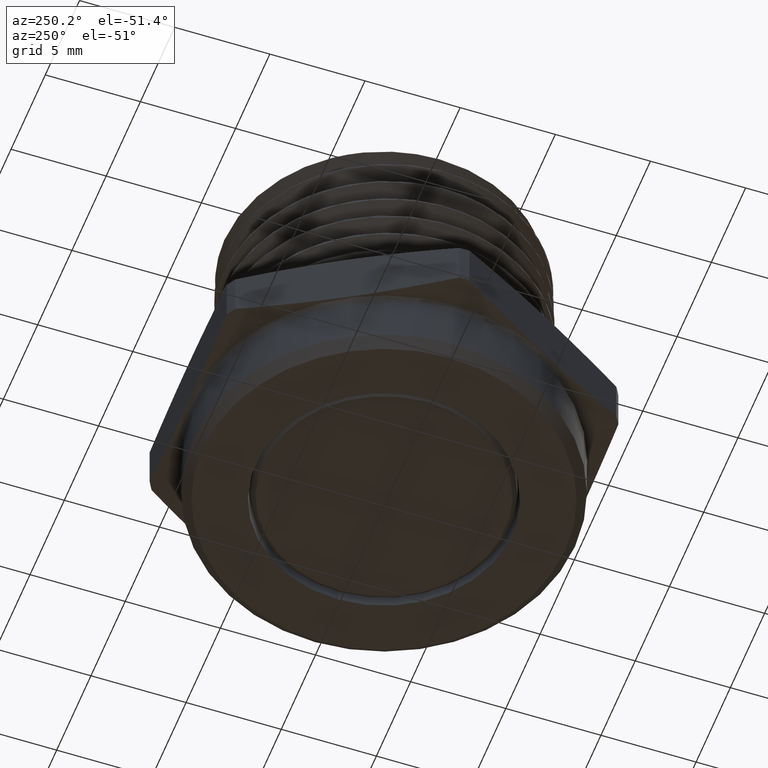
[diagram: clean part render]
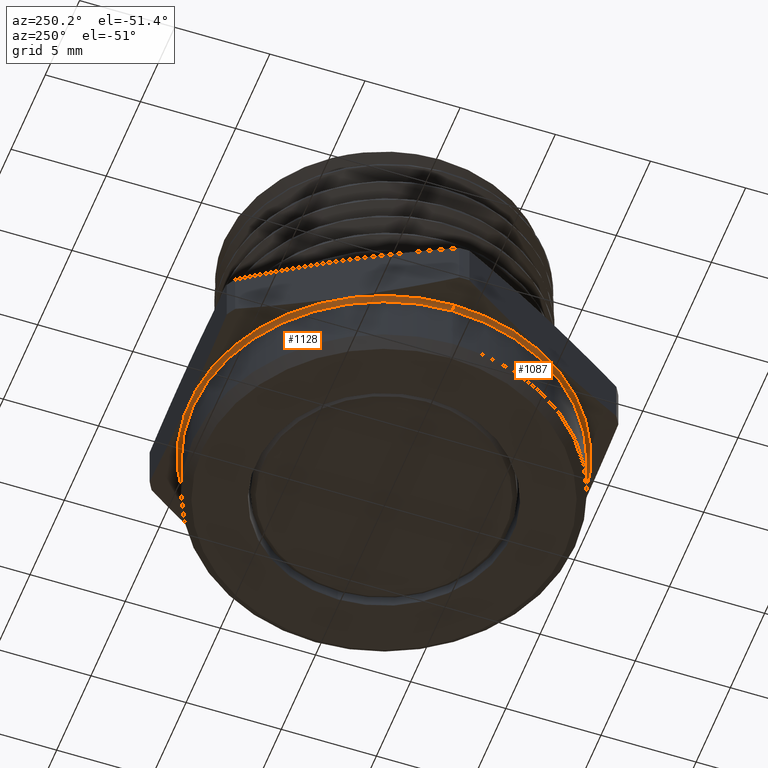
[diagram: same view with one multi-face feature highlighted, each face labeled with its STEP entity id]
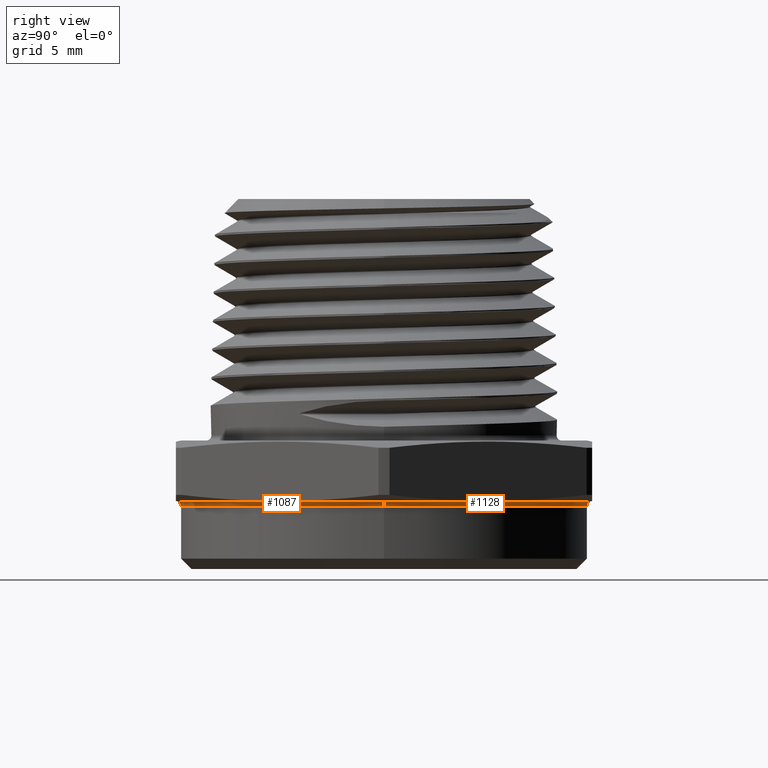
[diagram: same view with one multi-face feature highlighted, each face labeled with its STEP entity id]
A machine part, auxiliary view. The highlighted faces form ONE feature: a constant-radius fillet chain: 2 tangent blend faces with common blend radius 0.254 mm. The faces share edges in the B-rep.
A second angle (right view) of the same feature is appended — it is thin or edge-on in the first view.
Their STEP definitions:
[1] entity #1128 (Torus):
#97 = FACE_OUTER_BOUND ( 'NONE', #1683, .T. ) ;
#101 = TOROIDAL_SURFACE ( 'NONE', #2819, 0.4050000000000000300, 0.01000000000000000000 ) ;
#356 = CARTESIAN_POINT ( 'NONE',  ( -0.4050000000000000300, 0.0000000000000000000, -0.008097840331950198500 ) ) ;
#357 = DIRECTION ( 'NONE',  ( 0.0000000000000000000, -1.000000000000000000, 0.0000000000000000000 ) ) ;
#358 = DIRECTION ( 'NONE',  ( 0.0000000000000000000, 0.0000000000000000000, -1.000000000000000000 ) ) ;
#359 = CARTESIAN_POINT ( 'NONE',  ( 0.0000000000000000000, 0.0000000000000000000, -0.008097840331950215800 ) ) ;
#360 = DIRECTION ( 'NONE',  ( -6.123233995736756200E-017, -0.0000000000000000000, -1.000000000000000000 ) ) ;
#361 = DIRECTION ( 'NONE',  ( -1.000000000000000000, 0.0000000000000000000, 6.213657422298067100E-017 ) ) ;
#368 = CARTESIAN_POINT ( 'NONE',  ( 0.4050000000000000300, 4.959819536546781200E-017, -0.008097840331950248800 ) ) ;
#369 = DIRECTION ( 'NONE',  ( -1.224646799147353200E-016, 1.000000000000000000, 7.498798913309275700E-033 ) ) ;
#370 = DIRECTION ( 'NONE',  ( -1.000000000000000000, -1.224646799147346800E-016, 0.0000000000000000000 ) ) ;
#459 = AXIS2_PLACEMENT_3D ( 'NONE', #356, #357, #358 ) ;
#460 = AXIS2_PLACEMENT_3D ( 'NONE', #359, #360, #361 ) ;
#463 = AXIS2_PLACEMENT_3D ( 'NONE', #368, #369, #370 ) ;
#1128 = ADVANCED_FACE ( 'NONE', ( #97 ), #101, .F. ) ;
#1513 = CIRCLE ( 'NONE', #2854, 0.4029208830918225600 ) ;
#1631 = CIRCLE ( 'NONE', #460, 0.3950000000000000200 ) ;
#1633 = CIRCLE ( 'NONE', #459, 0.01000000000000000000 ) ;
#1638 = CIRCLE ( 'NONE', #463, 0.01000000000000003000 ) ;
#1683 = EDGE_LOOP ( 'NONE', ( #3454, #5434, #5427, #5431 ) ) ;
#2207 = CARTESIAN_POINT ( 'NONE',  ( 4.516955305409142200E-018, 0.0000000000000000000, 0.001683635675387737400 ) ) ;
#2208 = DIRECTION ( 'NONE',  ( 1.224646799147351200E-016, 0.0000000000000000000, 1.000000000000000000 ) ) ;
#2209 = DIRECTION ( 'NONE',  ( 1.000000000000000000, 0.0000000000000000000, -1.224922254911728200E-016 ) ) ;
#2330 = EDGE_CURVE ( 'NONE', #3392, #3393, #1513, .T. ) ;
#2819 = AXIS2_PLACEMENT_3D ( 'NONE', #3169, #3171, #3174 ) ;
#2854 = AXIS2_PLACEMENT_3D ( 'NONE', #2207, #2208, #2209 ) ;
#3169 = CARTESIAN_POINT ( 'NONE',  ( 3.918012641242989300E-018, 0.0000000000000000000, -0.008097840331950224500 ) ) ;
#3171 = DIRECTION ( 'NONE',  ( -6.123233995736756200E-017, -0.0000000000000000000, -1.000000000000000000 ) ) ;
#3174 = DIRECTION ( 'NONE',  ( -1.000000000000000000, 0.0000000000000000000, 6.123233995736756200E-017 ) ) ;
#3392 = VERTEX_POINT ( 'NONE', #3516 ) ;
#3393 = VERTEX_POINT ( 'NONE', #3517 ) ;
#3395 = VERTEX_POINT ( 'NONE', #3519 ) ;
#3398 = VERTEX_POINT ( 'NONE', #3522 ) ;
#3454 = ORIENTED_EDGE ( 'NONE', *, *, #5566, .F. ) ;
#3516 = CARTESIAN_POINT ( 'NONE',  ( 0.4029208830918218900, 0.0000000000000000000, 0.001683635675387688400 ) ) ;
#3517 = CARTESIAN_POINT ( 'NONE',  ( -0.4029208830918218900, 4.934357697880245400E-017, 0.001683635675387786700 ) ) ;
#3519 = CARTESIAN_POINT ( 'NONE',  ( -0.3950000000000000200, 4.837354856632044300E-017, -0.008097840331950191500 ) ) ;
#3522 = CARTESIAN_POINT ( 'NONE',  ( 0.3950000000000000200, 0.0000000000000000000, -0.008097840331950240100 ) ) ;
#5427 = ORIENTED_EDGE ( 'NONE', *, *, #5562, .T. ) ;
#5431 = ORIENTED_EDGE ( 'NONE', *, *, #2330, .F. ) ;
#5434 = ORIENTED_EDGE ( 'NONE', *, *, #5563, .F. ) ;
#5562 = EDGE_CURVE ( 'NONE', #3395, #3393, #1633, .T. ) ;
#5563 = EDGE_CURVE ( 'NONE', #3395, #3398, #1631, .T. ) ;
#5566 = EDGE_CURVE ( 'NONE', #3398, #3392, #1638, .T. ) ;
[2] entity #1087 (Torus):
#22 = FACE_OUTER_BOUND ( 'NONE', #765, .T. ) ;
#23 = TOROIDAL_SURFACE ( 'NONE', #2778, 0.4050000000000000300, 0.01000000000000000000 ) ;
#356 = CARTESIAN_POINT ( 'NONE',  ( -0.4050000000000000300, 0.0000000000000000000, -0.008097840331950198500 ) ) ;
#357 = DIRECTION ( 'NONE',  ( 0.0000000000000000000, -1.000000000000000000, 0.0000000000000000000 ) ) ;
#358 = DIRECTION ( 'NONE',  ( 0.0000000000000000000, 0.0000000000000000000, -1.000000000000000000 ) ) ;
#365 = CARTESIAN_POINT ( 'NONE',  ( 4.516955305409142200E-018, 0.0000000000000000000, 0.001683635675387737400 ) ) ;
#366 = DIRECTION ( 'NONE',  ( 1.224646799147351200E-016, 0.0000000000000000000, 1.000000000000000000 ) ) ;
#367 = DIRECTION ( 'NONE',  ( 1.000000000000000000, 0.0000000000000000000, -1.224922254911728200E-016 ) ) ;
#368 = CARTESIAN_POINT ( 'NONE',  ( 0.4050000000000000300, 4.959819536546781200E-017, -0.008097840331950248800 ) ) ;
#369 = DIRECTION ( 'NONE',  ( -1.224646799147353200E-016, 1.000000000000000000, 7.498798913309275700E-033 ) ) ;
#370 = DIRECTION ( 'NONE',  ( -1.000000000000000000, -1.224646799147346800E-016, 0.0000000000000000000 ) ) ;
#374 = CARTESIAN_POINT ( 'NONE',  ( 0.0000000000000000000, 0.0000000000000000000, -0.008097840331950215800 ) ) ;
#375 = DIRECTION ( 'NONE',  ( -6.123233995736756200E-017, -0.0000000000000000000, -1.000000000000000000 ) ) ;
#376 = DIRECTION ( 'NONE',  ( -1.000000000000000000, 0.0000000000000000000, 6.213657422298067100E-017 ) ) ;
#459 = AXIS2_PLACEMENT_3D ( 'NONE', #356, #357, #358 ) ;
#462 = AXIS2_PLACEMENT_3D ( 'NONE', #365, #366, #367 ) ;
#463 = AXIS2_PLACEMENT_3D ( 'NONE', #368, #369, #370 ) ;
#465 = AXIS2_PLACEMENT_3D ( 'NONE', #374, #375, #376 ) ;
#765 = EDGE_LOOP ( 'NONE', ( #3373, #3372, #3371, #3370 ) ) ;
#1087 = ADVANCED_FACE ( 'NONE', ( #22 ), #23, .F. ) ;
#1633 = CIRCLE ( 'NONE', #459, 0.01000000000000000000 ) ;
#1635 = CIRCLE ( 'NONE', #462, 0.4029208830918225600 ) ;
#1638 = CIRCLE ( 'NONE', #463, 0.01000000000000003000 ) ;
#1639 = CIRCLE ( 'NONE', #465, 0.3950000000000000200 ) ;
#2778 = AXIS2_PLACEMENT_3D ( 'NONE', #3229, #3274, #3227 ) ;
#3227 = DIRECTION ( 'NONE',  ( -1.000000000000000000, 0.0000000000000000000, 6.123233995736756200E-017 ) ) ;
#3229 = CARTESIAN_POINT ( 'NONE',  ( 3.918012641242989300E-018, 0.0000000000000000000, -0.008097840331950224500 ) ) ;
#3274 = DIRECTION ( 'NONE',  ( -6.123233995736756200E-017, -0.0000000000000000000, -1.000000000000000000 ) ) ;
#3370 = ORIENTED_EDGE ( 'NONE', *, *, #5562, .F. ) ;
#3371 = ORIENTED_EDGE ( 'NONE', *, *, #5565, .F. ) ;
#3372 = ORIENTED_EDGE ( 'NONE', *, *, #5566, .T. ) ;
#3373 = ORIENTED_EDGE ( 'NONE', *, *, #5568, .F. ) ;
#3392 = VERTEX_POINT ( 'NONE', #3516 ) ;
#3393 = VERTEX_POINT ( 'NONE', #3517 ) ;
#3395 = VERTEX_POINT ( 'NONE', #3519 ) ;
#3398 = VERTEX_POINT ( 'NONE', #3522 ) ;
#3516 = CARTESIAN_POINT ( 'NONE',  ( 0.4029208830918218900, 0.0000000000000000000, 0.001683635675387688400 ) ) ;
#3517 = CARTESIAN_POINT ( 'NONE',  ( -0.4029208830918218900, 4.934357697880245400E-017, 0.001683635675387786700 ) ) ;
#3519 = CARTESIAN_POINT ( 'NONE',  ( -0.3950000000000000200, 4.837354856632044300E-017, -0.008097840331950191500 ) ) ;
#3522 = CARTESIAN_POINT ( 'NONE',  ( 0.3950000000000000200, 0.0000000000000000000, -0.008097840331950240100 ) ) ;
#5562 = EDGE_CURVE ( 'NONE', #3395, #3393, #1633, .T. ) ;
#5565 = EDGE_CURVE ( 'NONE', #3393, #3392, #1635, .T. ) ;
#5566 = EDGE_CURVE ( 'NONE', #3398, #3392, #1638, .T. ) ;
#5568 = EDGE_CURVE ( 'NONE', #3398, #3395, #1639, .T. ) ;